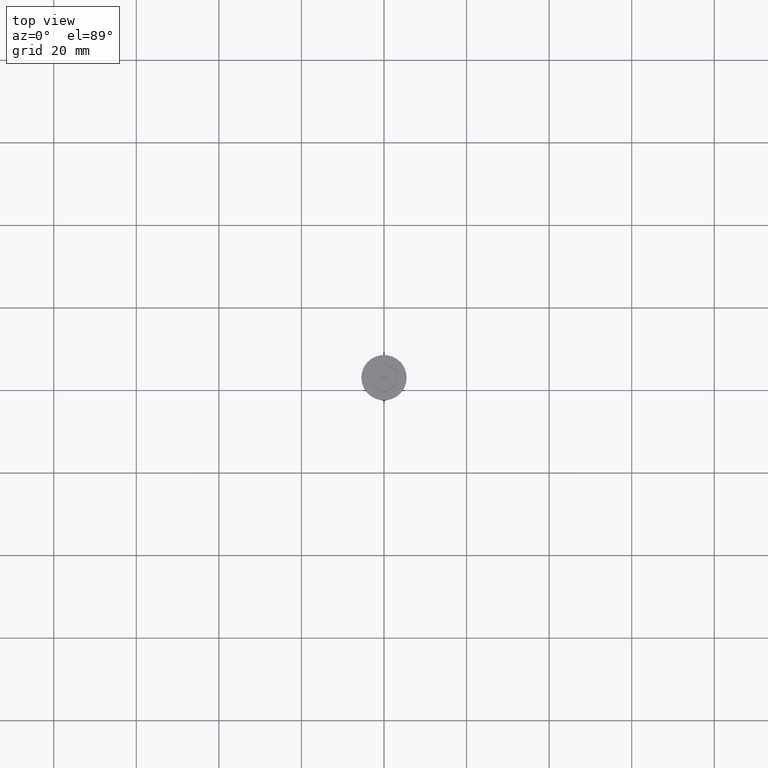
[diagram: clean part render]
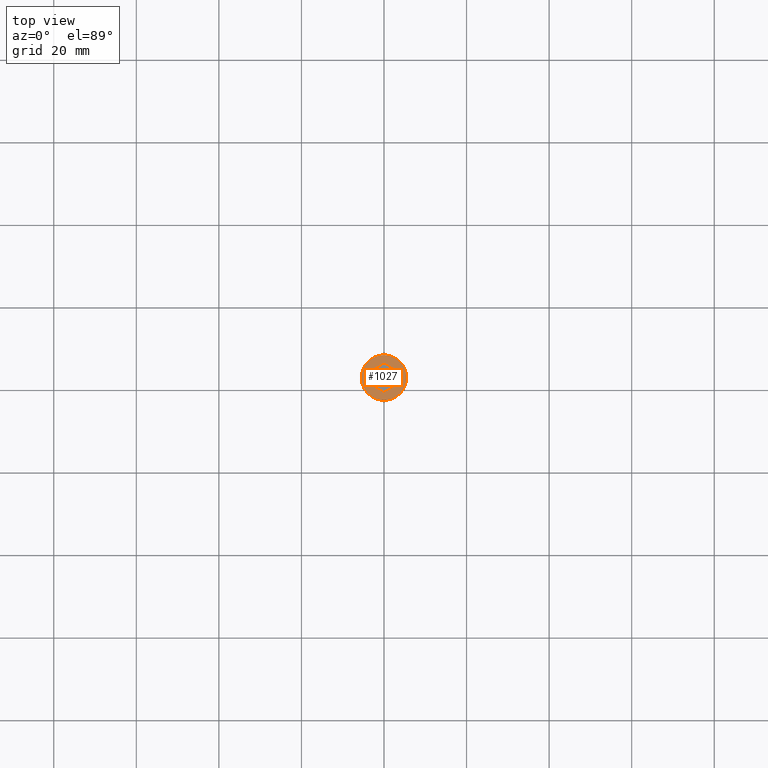
[diagram: same view with one face highlighted and labeled with its STEP entity id]
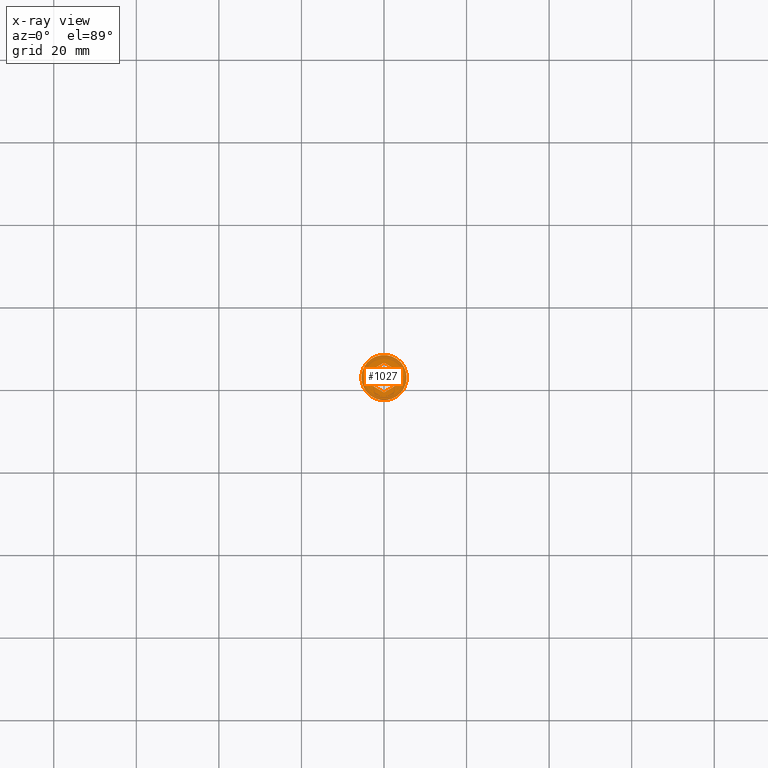
[diagram: x-ray of the same camera — body ghosted, the highlighted face saturated]
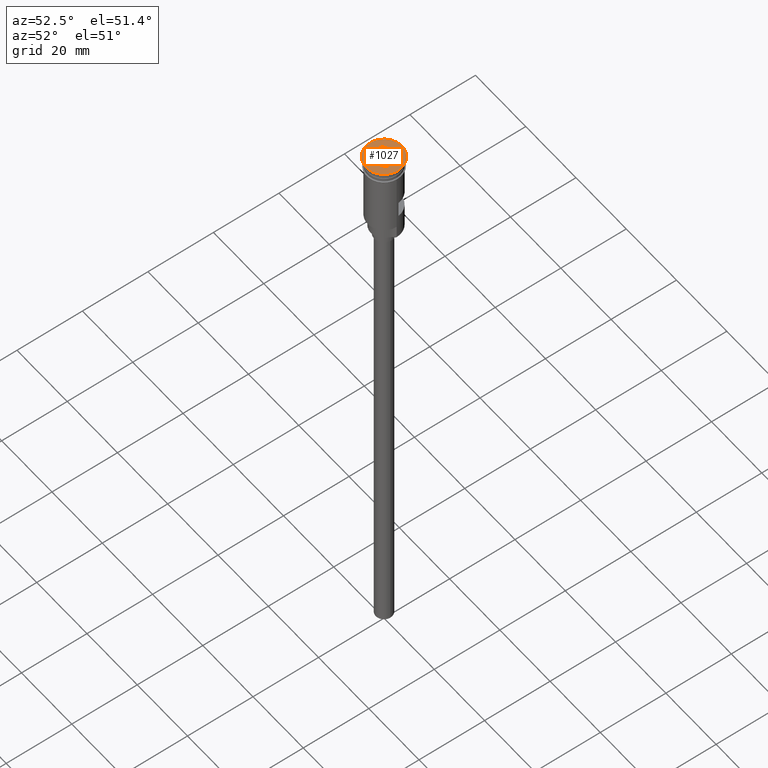
[diagram: same view with one face highlighted and labeled with its STEP entity id]
A machine part, top view. The second image highlights one B-rep face of the part: STEP entity #1027.
The next image is the same camera in x-ray: the body ghosted, the highlighted face saturated — about 0% of this face is hidden behind the body in this view.
A second angle (auxiliary view) of the same face is appended — the face is thin or edge-on in the first view.
In plain terms, the highlighted planar face has unit normal (0, -0, 1).
Its self-contained STEP definition (entity closure, byte-faithful):
#10 = DIRECTION ( 'NONE',  ( 0.8660254037844387076, 0.4999999999999998890, 0.000000000000000000 ) ) ;
#14 = VERTEX_POINT ( 'NONE', #148 ) ;
#52 = CIRCLE ( 'NONE', #263, 5.500000000000000000 ) ;
#60 = FACE_BOUND ( 'NONE', #1530, .T. ) ;
#108 = CARTESIAN_POINT ( 'NONE',  ( -3.099999999999983213, 1.789785834487829908, 0.000000000000000000 ) ) ;
#120 = DIRECTION ( 'NONE',  ( 1.000000000000000000, 0.000000000000000000, 0.000000000000000000 ) ) ;
#144 = LINE ( 'NONE', #526, #1299 ) ;
#146 = EDGE_CURVE ( 'NONE', #231, #821, #1139, .T. ) ;
#148 = CARTESIAN_POINT ( 'NONE',  ( 3.099999999999982769, -1.789785834487828353, 0.000000000000000000 ) ) ;
#181 = ORIENTED_EDGE ( 'NONE', *, *, #257, .T. ) ;
#189 = AXIS2_PLACEMENT_3D ( 'NONE', #311, #1019, #1261 ) ;
#231 = VERTEX_POINT ( 'NONE', #108 ) ;
#237 = VECTOR ( 'NONE', #294, 1000.000000000000114 ) ;
#257 = EDGE_CURVE ( 'NONE', #1605, #14, #1114, .T. ) ;
#263 = AXIS2_PLACEMENT_3D ( 'NONE', #497, #1368, #1386 ) ;
#294 = DIRECTION ( 'NONE',  ( 0.8660254037844388186, -0.4999999999999997780, 0.000000000000000000 ) ) ;
#295 = ORIENTED_EDGE ( 'NONE', *, *, #889, .T. ) ;
#311 = CARTESIAN_POINT ( 'NONE',  ( 0.000000000000000000, 0.000000000000000000, 0.000000000000000000 ) ) ;
#361 = CARTESIAN_POINT ( 'NONE',  ( 0.04999999999999141936, -3.550704155516182237, 0.000000000000000000 ) ) ;
#380 = ORIENTED_EDGE ( 'NONE', *, *, #817, .T. ) ;
#476 = VERTEX_POINT ( 'NONE', #1562 ) ;
#497 = CARTESIAN_POINT ( 'NONE',  ( 0.000000000000000000, 0.000000000000000000, 0.000000000000000000 ) ) ;
#526 = CARTESIAN_POINT ( 'NONE',  ( -3.049999999999991385, -1.818653347947305932, 0.000000000000000000 ) ) ;
#528 = PLANE ( 'NONE',  #189 ) ;
#561 = VERTEX_POINT ( 'NONE', #1479 ) ;
#573 = VECTOR ( 'NONE', #842, 1000.000000000000114 ) ;
#586 = CARTESIAN_POINT ( 'NONE',  ( 5.500000000000000000, 0.000000000000000000, 0.000000000000000000 ) ) ;
#593 = ORIENTED_EDGE ( 'NONE', *, *, #146, .T. ) ;
#634 = LINE ( 'NONE', #1168, #237 ) ;
#662 = FACE_OUTER_BOUND ( 'NONE', #1321, .T. ) ;
#663 = CARTESIAN_POINT ( 'NONE',  ( 3.099999999999983213, 1.789785834487831462, 0.000000000000000000 ) ) ;
#665 = CARTESIAN_POINT ( 'NONE',  ( -1.958864205101993824E-16, -3.579571668975658927, 0.000000000000000000 ) ) ;
#686 = EDGE_CURVE ( 'NONE', #561, #231, #869, .T. ) ;
#740 = CARTESIAN_POINT ( 'NONE',  ( 0.000000000000000000, 0.000000000000000000, 0.000000000000000000 ) ) ;
#787 = EDGE_CURVE ( 'NONE', #1294, #561, #144, .T. ) ;
#817 = EDGE_CURVE ( 'NONE', #821, #1605, #634, .T. ) ;
#821 = VERTEX_POINT ( 'NONE', #1529 ) ;
#840 = VERTEX_POINT ( 'NONE', #586 ) ;
#842 = DIRECTION ( 'NONE',  ( -0.8660254037844385966, -0.5000000000000001110, 0.000000000000000000 ) ) ;
#869 = LINE ( 'NONE', #1124, #878 ) ;
#870 = DIRECTION ( 'NONE',  ( -0.8660254037844387076, 0.4999999999999998335, 0.000000000000000000 ) ) ;
#878 = VECTOR ( 'NONE', #1359, 1000.000000000000000 ) ;
#889 = EDGE_CURVE ( 'NONE', #14, #1294, #1411, .T. ) ;
#978 = VECTOR ( 'NONE', #1323, 1000.000000000000000 ) ;
#983 = AXIS2_PLACEMENT_3D ( 'NONE', #740, #1237, #120 ) ;
#1019 = DIRECTION ( 'NONE',  ( 0.000000000000000000, -0.000000000000000000, 1.000000000000000000 ) ) ;
#1025 = CARTESIAN_POINT ( 'NONE',  ( -0.04999999999999187039, 3.550704155516183125, 0.000000000000000000 ) ) ;
#1027 = ADVANCED_FACE ( 'NONE', ( #60, #662 ), #528, .T. ) ;
#1087 = CARTESIAN_POINT ( 'NONE',  ( 3.099999999999982769, -1.732050807568876083, 0.000000000000000000 ) ) ;
#1114 = LINE ( 'NONE', #1087, #978 ) ;
#1115 = VECTOR ( 'NONE', #10, 1000.000000000000000 ) ;
#1124 = CARTESIAN_POINT ( 'NONE',  ( -3.099999999999983213, 1.732050807568876971, 0.000000000000000000 ) ) ;
#1139 = LINE ( 'NONE', #1025, #1115 ) ;
#1168 = CARTESIAN_POINT ( 'NONE',  ( 3.049999999999991829, 1.818653347947307708, 0.000000000000000000 ) ) ;
#1191 = ORIENTED_EDGE ( 'NONE', *, *, #1351, .T. ) ;
#1237 = DIRECTION ( 'NONE',  ( -0.000000000000000000, -0.000000000000000000, 1.000000000000000000 ) ) ;
#1261 = DIRECTION ( 'NONE',  ( 1.000000000000000000, 0.000000000000000000, 0.000000000000000000 ) ) ;
#1294 = VERTEX_POINT ( 'NONE', #665 ) ;
#1299 = VECTOR ( 'NONE', #870, 1000.000000000000000 ) ;
#1321 = EDGE_LOOP ( 'NONE', ( #1556, #1191 ) ) ;
#1323 = DIRECTION ( 'NONE',  ( -1.251928832280966188E-16, -1.000000000000000000, 0.000000000000000000 ) ) ;
#1324 = EDGE_CURVE ( 'NONE', #840, #476, #52, .T. ) ;
#1346 = ORIENTED_EDGE ( 'NONE', *, *, #787, .T. ) ;
#1351 = EDGE_CURVE ( 'NONE', #476, #840, #1551, .T. ) ;
#1352 = ORIENTED_EDGE ( 'NONE', *, *, #686, .T. ) ;
#1359 = DIRECTION ( 'NONE',  ( 0.000000000000000000, 1.000000000000000000, 0.000000000000000000 ) ) ;
#1368 = DIRECTION ( 'NONE',  ( -0.000000000000000000, -0.000000000000000000, 1.000000000000000000 ) ) ;
#1386 = DIRECTION ( 'NONE',  ( 1.000000000000000000, 0.000000000000000000, 0.000000000000000000 ) ) ;
#1411 = LINE ( 'NONE', #361, #573 ) ;
#1479 = CARTESIAN_POINT ( 'NONE',  ( -3.099999999999983213, -1.789785834487829241, 0.000000000000000000 ) ) ;
#1529 = CARTESIAN_POINT ( 'NONE',  ( 6.103073414120078086E-16, 3.579571668975660259, 0.000000000000000000 ) ) ;
#1530 = EDGE_LOOP ( 'NONE', ( #1352, #593, #380, #181, #295, #1346 ) ) ;
#1551 = CIRCLE ( 'NONE', #983, 5.500000000000000000 ) ;
#1556 = ORIENTED_EDGE ( 'NONE', *, *, #1324, .T. ) ;
#1562 = CARTESIAN_POINT ( 'NONE',  ( -5.500000000000000000, 6.735557395310442023E-16, 0.000000000000000000 ) ) ;
#1605 = VERTEX_POINT ( 'NONE', #663 ) ;